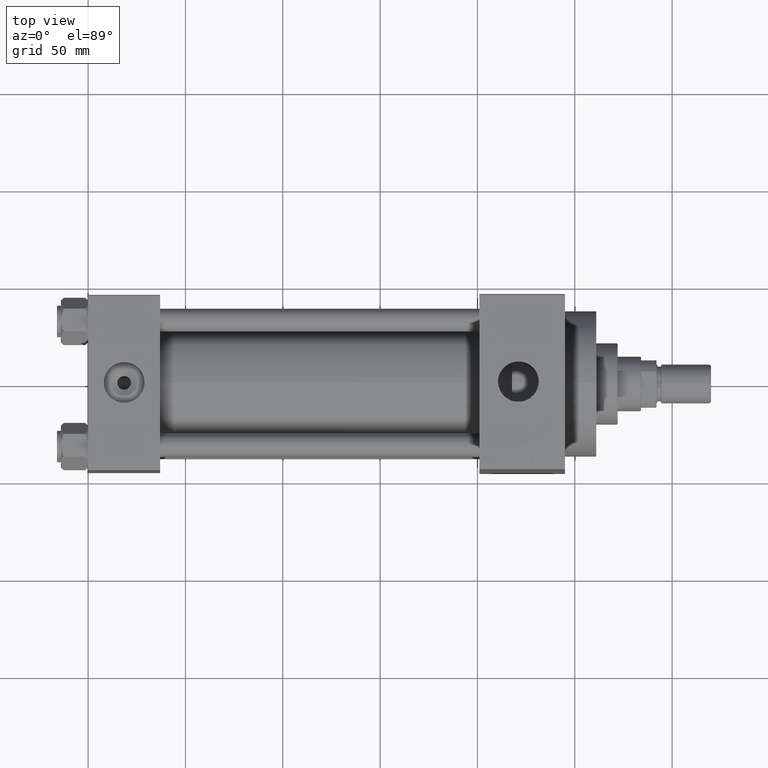
[diagram: clean part render]
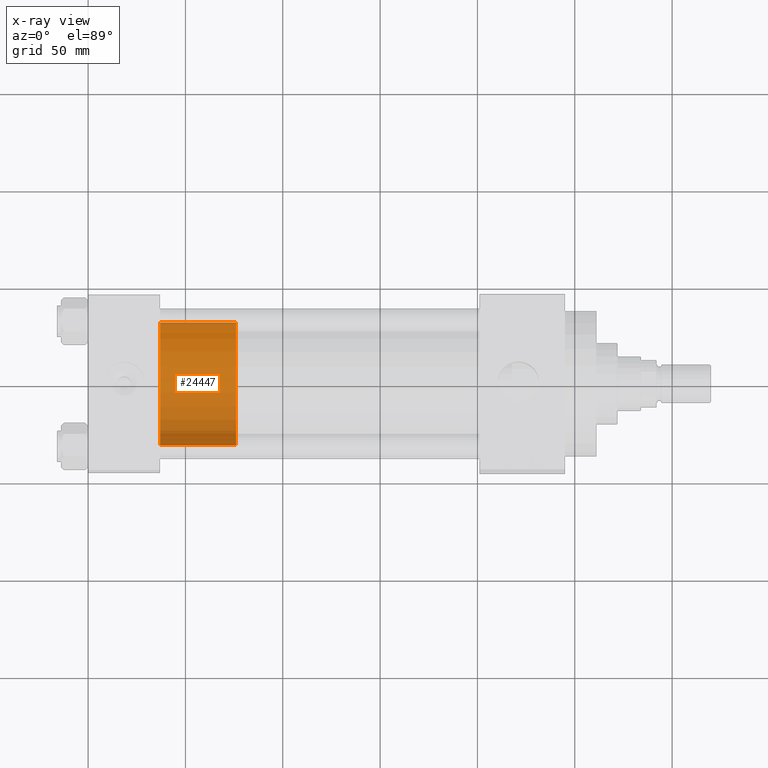
[diagram: x-ray — body ghosted, one internal face saturated and labeled with its STEP entity id]
A machine part, top view, then the same camera in x-ray: the body is ghosted and one INTERNAL B-rep face — a face not visible from any outside direction — is saturated and labeled: STEP entity #24447.
In plain terms, the highlighted cylindrical surface (partial cylindrical patch) has radius 31.5 mm, axis along (-1, 0, 0).
Its self-contained STEP definition (entity closure, byte-faithful):
#218 = CARTESIAN_POINT ( 'NONE',  ( -31.50000000000000000, 0.000000000000000000, 39.00000000000000000 ) ) ;
#262 = DIRECTION ( 'NONE',  ( -0.000000000000000000, -0.000000000000000000, -1.000000000000000000 ) ) ;
#785 = AXIS2_PLACEMENT_3D ( 'NONE', #25943, #262, #40946 ) ;
#1138 = VERTEX_POINT ( 'NONE', #5504 ) ;
#4070 = LINE ( 'NONE', #4312, #30266 ) ;
#4312 = CARTESIAN_POINT ( 'NONE',  ( 31.50000000000000000, 3.857637417314162689E-15, 39.00000000000000000 ) ) ;
#5504 = CARTESIAN_POINT ( 'NONE',  ( 31.50000000000000000, 3.857637417314162689E-15, 0.000000000000000000 ) ) ;
#9597 = DIRECTION ( 'NONE',  ( -0.000000000000000000, -0.000000000000000000, -1.000000000000000000 ) ) ;
#9679 = CARTESIAN_POINT ( 'NONE',  ( 31.50000000000000000, 3.857637417314162689E-15, 39.00000000000000000 ) ) ;
#11598 = CIRCLE ( 'NONE', #38667, 31.50000000000000000 ) ;
#11654 = EDGE_CURVE ( 'NONE', #12185, #47323, #40257, .T. ) ;
#12106 = CARTESIAN_POINT ( 'NONE',  ( -31.50000000000000000, 0.000000000000000000, 39.00000000000000000 ) ) ;
#12185 = VERTEX_POINT ( 'NONE', #9679 ) ;
#12598 = DIRECTION ( 'NONE',  ( 0.000000000000000000, 0.000000000000000000, 1.000000000000000000 ) ) ;
#16201 = ORIENTED_EDGE ( 'NONE', *, *, #23887, .T. ) ;
#16712 = CARTESIAN_POINT ( 'NONE',  ( 0.000000000000000000, 0.000000000000000000, 0.000000000000000000 ) ) ;
#16717 = CARTESIAN_POINT ( 'NONE',  ( -31.50000000000000000, 0.000000000000000000, 0.000000000000000000 ) ) ;
#17829 = AXIS2_PLACEMENT_3D ( 'NONE', #37668, #22662, #34032 ) ;
#22662 = DIRECTION ( 'NONE',  ( 0.000000000000000000, 0.000000000000000000, 1.000000000000000000 ) ) ;
#23887 = EDGE_CURVE ( 'NONE', #1138, #35006, #11598, .T. ) ;
#24447 = ADVANCED_FACE ( 'NONE', ( #26661 ), #33447, .T. ) ;
#25943 = CARTESIAN_POINT ( 'NONE',  ( 0.000000000000000000, 0.000000000000000000, 39.00000000000000000 ) ) ;
#26661 = FACE_OUTER_BOUND ( 'NONE', #43481, .T. ) ;
#26881 = DIRECTION ( 'NONE',  ( -0.000000000000000000, -0.000000000000000000, -1.000000000000000000 ) ) ;
#27630 = EDGE_CURVE ( 'NONE', #47323, #35006, #30515, .T. ) ;
#30266 = VECTOR ( 'NONE', #9597, 1000.000000000000000 ) ;
#30515 = LINE ( 'NONE', #12106, #33374 ) ;
#31018 = EDGE_CURVE ( 'NONE', #12185, #1138, #4070, .T. ) ;
#31472 = DIRECTION ( 'NONE',  ( 1.000000000000000000, 0.000000000000000000, 0.000000000000000000 ) ) ;
#33347 = ORIENTED_EDGE ( 'NONE', *, *, #27630, .F. ) ;
#33374 = VECTOR ( 'NONE', #26881, 1000.000000000000000 ) ;
#33447 = CYLINDRICAL_SURFACE ( 'NONE', #785, 31.50000000000000000 ) ;
#34032 = DIRECTION ( 'NONE',  ( 1.000000000000000000, 0.000000000000000000, 0.000000000000000000 ) ) ;
#35006 = VERTEX_POINT ( 'NONE', #16717 ) ;
#37217 = ORIENTED_EDGE ( 'NONE', *, *, #31018, .T. ) ;
#37668 = CARTESIAN_POINT ( 'NONE',  ( 0.000000000000000000, 0.000000000000000000, 39.00000000000000000 ) ) ;
#38667 = AXIS2_PLACEMENT_3D ( 'NONE', #16712, #12598, #31472 ) ;
#40257 = CIRCLE ( 'NONE', #17829, 31.50000000000000000 ) ;
#40946 = DIRECTION ( 'NONE',  ( -1.000000000000000000, 0.000000000000000000, 0.000000000000000000 ) ) ;
#43481 = EDGE_LOOP ( 'NONE', ( #47789, #37217, #16201, #33347 ) ) ;
#47323 = VERTEX_POINT ( 'NONE', #218 ) ;
#47789 = ORIENTED_EDGE ( 'NONE', *, *, #11654, .F. ) ;